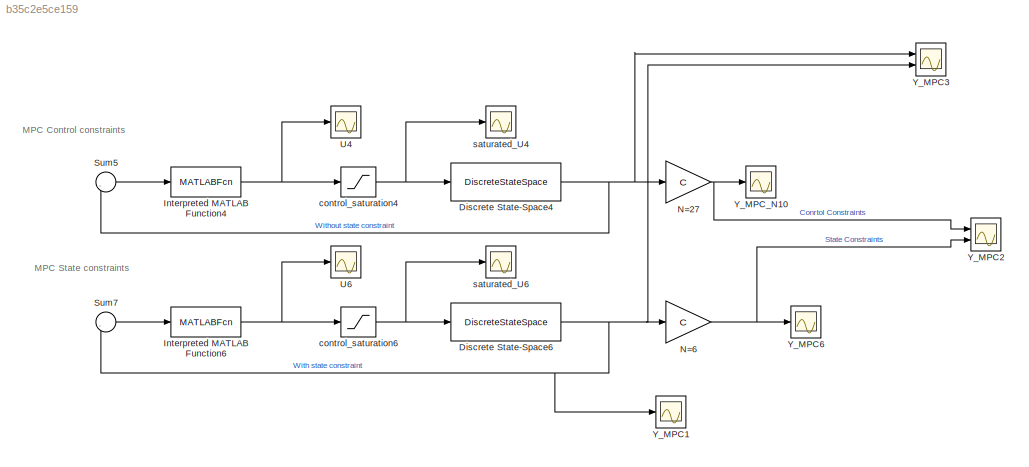
MODEL slx_b35c2e5ce159
KIND model
CONFIG AbsTol = auto
CONFIG EnableMultiTasking = off
CONFIG FixedStep = auto
CONFIG MaxStep = auto
CONFIG MinStep = auto
CONFIG RelTol = 1e-3
CONFIG SampleTimeConstraint = Unconstrained
CONFIG SolverName = VariableStepAuto
CONFIG StartTime = 0.0
CONFIG StopTime = 30
BLOCK [DiscreteStateSpace] Discrete State-Space4
  A = A
  B = B
  C = C_states
  D = D_states
  InitialCondition = x0
  SampleTime = Ts
BLOCK [DiscreteStateSpace] Discrete State-Space6
  A = A
  B = B
  C = C_states
  D = D_states
  InitialCondition = x0
  SampleTime = Ts
BLOCK [MATLABFcn] Interpreted MATLAB Function4
  MATLABFcn = mympc(A,B,Q,R,S,N3,umin,umax,u,Ubar,Xbar);
  OutputDimensions = 1
  Ports = [1, 1]
BLOCK [MATLABFcn] Interpreted MATLAB Function6
  MATLABFcn = mympc_constraints(A,B,Q,R,S,N3,umin,umax,xmin,xmax,u,Ubar,Xbar,x0);
  OutputDimensions = 1
  Ports = [1, 1]
BLOCK [Gain] N=27
  Gain = C
  Multiplication = Matrix(K*u) (u vector)
BLOCK [Gain] N=6
  Gain = C
  Multiplication = Matrix(K*u) (u vector)
BLOCK [Sum] Sum5
  Inputs = |-+
  Ports = [2, 1]
BLOCK [Sum] Sum7
  Inputs = |-+
  Ports = [2, 1]
BLOCK [Scope] U4
  Floating = off
  NumInputPorts = 1
  Ports = [1]
  ScopeSpecificationString = Simulink.scopes.TimeScopeBlockCfg('CurrentConfiguration', extmgr.ConfigurationSet(extmgr.Configuration('Core','General UI',true),extmgr.Configuration('Core','Source UI',true),extmgr.Configuration('Sources','WiredSimulink',true,'DataLoggingSaveFormat','StructureWithTime','DataLoggingLimitDataPoints',true,'DataLoggingDecimation','1','DataLoggingDecimateData',true,'DataLoggingVariableName','ScopeData...<+1803ch>  <repeated x3 — deduplicated; at blocks: U4, U6, saturated_U4>
BLOCK [Scope] U6
  Floating = off
  NumInputPorts = 1
  Ports = [1]
BLOCK [Scope] Y_MPC1
  Floating = off
  NumInputPorts = 1
  Ports = [1]
  ScopeSpecificationString = Simulink.scopes.TimeScopeBlockCfg('CurrentConfiguration', extmgr.ConfigurationSet(extmgr.Configuration('Core','General UI',true),extmgr.Configuration('Core','Source UI',true),extmgr.Configuration('Sources','WiredSimulink',true,'DataLoggingVariableName','ScopeData1','DataLoggingSaveFormat','StructureWithTime','DataLoggingLimitDataPoints',true,'DataLoggingDecimation','1','DataLoggingDecimateData',tr...<+2362ch>
BLOCK [Scope] Y_MPC2
  Floating = off
  NumInputPorts = 2
  Ports = [2]
  ScopeSpecificationString = Simulink.scopes.TimeScopeBlockCfg('CurrentConfiguration', extmgr.ConfigurationSet(extmgr.Configuration('Core','General UI',true),extmgr.Configuration('Core','Source UI',true),extmgr.Configuration('Sources','WiredSimulink',true,'DataLoggingVariableName','ScopeData4','DataLoggingSaveFormat','StructureWithTime','DataLoggingLimitDataPoints',true,'DataLoggingDecimation','1','DataLoggingDecimateData',tr...<+1803ch>
BLOCK [Scope] Y_MPC3
  Floating = off
  NumInputPorts = 2
  Ports = [2]
  ScopeSpecificationString = Simulink.scopes.TimeScopeBlockCfg('CurrentConfiguration', extmgr.ConfigurationSet(extmgr.Configuration('Core','General UI',true),extmgr.Configuration('Core','Source UI',true),extmgr.Configuration('Sources','WiredSimulink',true,'DataLoggingVariableName','ScopeData1','DataLoggingSaveFormat','StructureWithTime','DataLoggingLimitDataPoints',true,'DataLoggingDecimation','1','DataLoggingDecimateData',tr...<+3004ch>
BLOCK [Scope] Y_MPC6
  Floating = off
  NumInputPorts = 1
  Ports = [1]
  ScopeSpecificationString = Simulink.scopes.TimeScopeBlockCfg('CurrentConfiguration', extmgr.ConfigurationSet(extmgr.Configuration('Core','General UI',true),extmgr.Configuration('Core','Source UI',true),extmgr.Configuration('Sources','WiredSimulink',true,'DataLoggingVariableName','ScopeData2','DataLoggingSaveFormat','StructureWithTime','DataLoggingLimitDataPoints',true,'DataLoggingDecimation','1','DataLoggingDecimateData',tr...<+1783ch>
BLOCK [Scope] Y_MPC_N10
  Floating = off
  NumInputPorts = 1
  Ports = [1]
  ScopeSpecificationString = Simulink.scopes.TimeScopeBlockCfg('CurrentConfiguration', extmgr.ConfigurationSet(extmgr.Configuration('Core','General UI',true),extmgr.Configuration('Core','Source UI',true),extmgr.Configuration('Sources','WiredSimulink',true,'DataLoggingVariableName','ScopeData2','DataLoggingSaveFormat','StructureWithTime','DataLoggingLimitDataPoints',true,'DataLoggingDecimation','1','DataLoggingDecimateData',tr...<+1770ch>
BLOCK [Saturate] control_saturation4
  LowerLimit = U_min
  UpperLimit = U_max
BLOCK [Saturate] control_saturation6
  LowerLimit = -inf
  UpperLimit = inf
BLOCK [Scope] saturated_U4
  Floating = off
  NumInputPorts = 1
  Ports = [1]
BLOCK [Scope] saturated_U6
  Floating = off
  NumInputPorts = 1
  Ports = [1]
  ScopeSpecificationString = Simulink.scopes.TimeScopeBlockCfg('CurrentConfiguration', extmgr.ConfigurationSet(extmgr.Configuration('Core','General UI',true),extmgr.Configuration('Core','Source UI',true),extmgr.Configuration('Sources','WiredSimulink',true,'DataLoggingSaveFormat','StructureWithTime','DataLoggingLimitDataPoints',true,'DataLoggingDecimation','1','DataLoggingDecimateData',true),extmgr.Configuration('Visuals','Tim...<+1763ch>
ANNOTATION (root): MPC Control constraints
ANNOTATION (root): MPC State constraints
NET Discrete State-Space4:1 -> N=27:1, Sum5:2, Y_MPC3:1
NET Discrete State-Space6:1 -> N=6:1, Sum7:2, Y_MPC1:1, Y_MPC3:2
NET Interpreted MATLAB Function4:1 -> U4:1, control_saturation4:1
NET Interpreted MATLAB Function6:1 -> U6:1, control_saturation6:1
NET N=27:1 -> Y_MPC2:1, Y_MPC_N10:1
NET N=6:1 -> Y_MPC2:2, Y_MPC6:1
LINE Sum5:1 -> Interpreted MATLAB Function4:1
LINE Sum7:1 -> Interpreted MATLAB Function6:1
NET control_saturation4:1 -> Discrete State-Space4:1, saturated_U4:1
NET control_saturation6:1 -> Discrete State-Space6:1, saturated_U6:1
note: NET lines group one-source signal fan-out (src -> all destinations, sorted); 1:1 wires keep LINE
